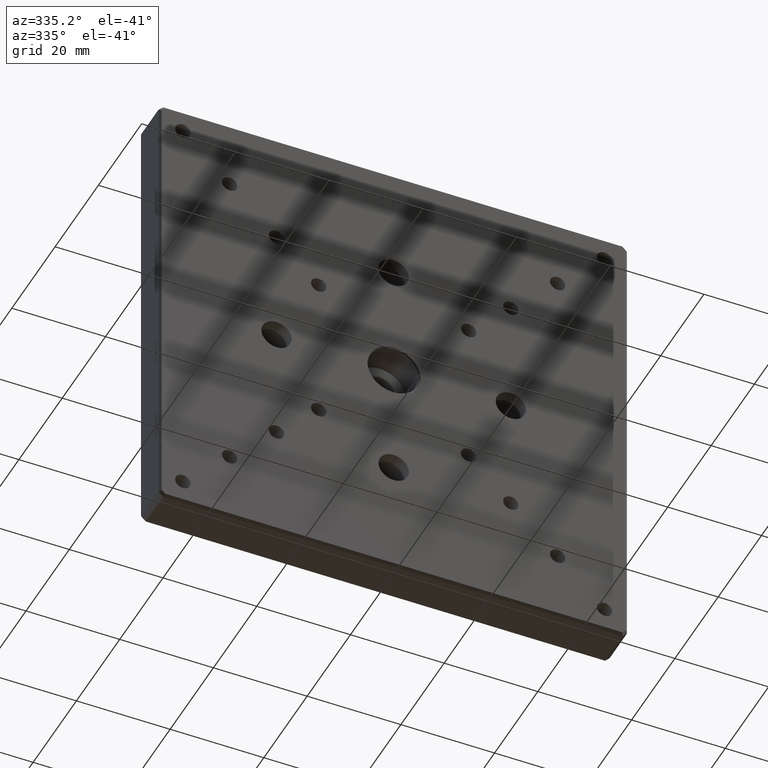
[diagram: clean part render]
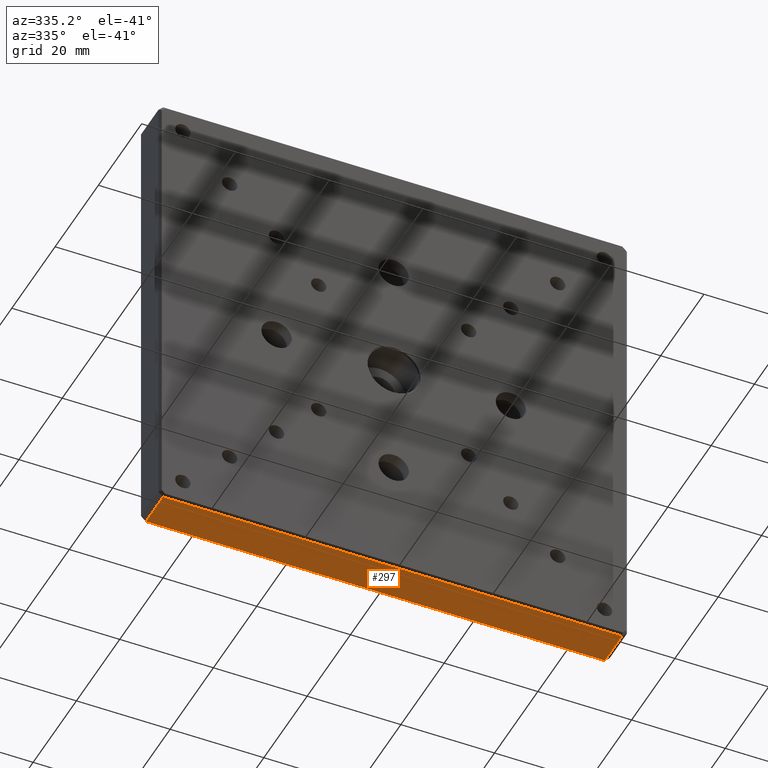
[diagram: same view with one face highlighted and labeled with its STEP entity id]
A machine part, auxiliary view. The second image highlights one B-rep face of the part: STEP entity #297.
In plain terms, the highlighted planar face has unit normal (0, 0, 1).
Its self-contained STEP definition (entity closure, byte-faithful):
#77 = CARTESIAN_POINT ( 'NONE',  ( 49.00000000000000711, 9.000000000000000000, -49.99999999999999289 ) ) ;
#102 = LINE ( 'NONE', #948, #1062 ) ;
#201 = LINE ( 'NONE', #77, #1883 ) ;
#209 = VECTOR ( 'NONE', #264, 1000.000000000000000 ) ;
#238 = VERTEX_POINT ( 'NONE', #1066 ) ;
#264 = DIRECTION ( 'NONE',  ( -1.000000000000000000, 0.000000000000000000, 0.000000000000000000 ) ) ;
#270 = FACE_OUTER_BOUND ( 'NONE', #985, .T. ) ;
#297 = ADVANCED_FACE ( 'NONE', ( #270 ), #2024, .F. ) ;
#385 = DIRECTION ( 'NONE',  ( 1.000000000000000000, 0.000000000000000000, 0.000000000000000000 ) ) ;
#447 = ORIENTED_EDGE ( 'NONE', *, *, #1480, .T. ) ;
#465 = ORIENTED_EDGE ( 'NONE', *, *, #588, .T. ) ;
#588 = EDGE_CURVE ( 'NONE', #1439, #1915, #201, .T. ) ;
#714 = DIRECTION ( 'NONE',  ( 0.000000000000000000, 0.000000000000000000, 1.000000000000000000 ) ) ;
#759 = LINE ( 'NONE', #904, #209 ) ;
#818 = ORIENTED_EDGE ( 'NONE', *, *, #1899, .T. ) ;
#904 = CARTESIAN_POINT ( 'NONE',  ( -50.00000000000000711, 0.5000000000000004441, -49.99999999999999289 ) ) ;
#908 = CARTESIAN_POINT ( 'NONE',  ( -50.00000000000000711, 9.000000000000000000, -49.99999999999999289 ) ) ;
#948 = CARTESIAN_POINT ( 'NONE',  ( -49.00000000000002132, 9.000000000000000000, -49.99999999999999289 ) ) ;
#968 = AXIS2_PLACEMENT_3D ( 'NONE', #908, #714, #1545 ) ;
#985 = EDGE_LOOP ( 'NONE', ( #465, #1506, #447, #818 ) ) ;
#1002 = CARTESIAN_POINT ( 'NONE',  ( -49.00000000000002132, 0.5000000000000004441, -49.99999999999999289 ) ) ;
#1008 = DIRECTION ( 'NONE',  ( 0.000000000000000000, -1.000000000000000000, 0.000000000000000000 ) ) ;
#1032 = LINE ( 'NONE', #1189, #1088 ) ;
#1062 = VECTOR ( 'NONE', #1555, 1000.000000000000000 ) ;
#1066 = CARTESIAN_POINT ( 'NONE',  ( -49.00000000000002132, 8.499999999999998224, -49.99999999999999289 ) ) ;
#1088 = VECTOR ( 'NONE', #385, 1000.000000000000000 ) ;
#1178 = VERTEX_POINT ( 'NONE', #1002 ) ;
#1189 = CARTESIAN_POINT ( 'NONE',  ( 49.00000000000000711, 8.499999999999998224, -49.99999999999999289 ) ) ;
#1239 = CARTESIAN_POINT ( 'NONE',  ( 49.00000000000000711, 8.499999999999998224, -49.99999999999999289 ) ) ;
#1439 = VERTEX_POINT ( 'NONE', #1239 ) ;
#1480 = EDGE_CURVE ( 'NONE', #1178, #238, #102, .T. ) ;
#1506 = ORIENTED_EDGE ( 'NONE', *, *, #2000, .T. ) ;
#1545 = DIRECTION ( 'NONE',  ( 1.000000000000000000, 0.000000000000000000, -0.000000000000000000 ) ) ;
#1555 = DIRECTION ( 'NONE',  ( -0.000000000000000000, 1.000000000000000000, 0.000000000000000000 ) ) ;
#1635 = CARTESIAN_POINT ( 'NONE',  ( 49.00000000000000711, 0.5000000000000004441, -49.99999999999999289 ) ) ;
#1883 = VECTOR ( 'NONE', #1008, 1000.000000000000000 ) ;
#1899 = EDGE_CURVE ( 'NONE', #238, #1439, #1032, .T. ) ;
#1915 = VERTEX_POINT ( 'NONE', #1635 ) ;
#2000 = EDGE_CURVE ( 'NONE', #1915, #1178, #759, .T. ) ;
#2024 = PLANE ( 'NONE',  #968 ) ;